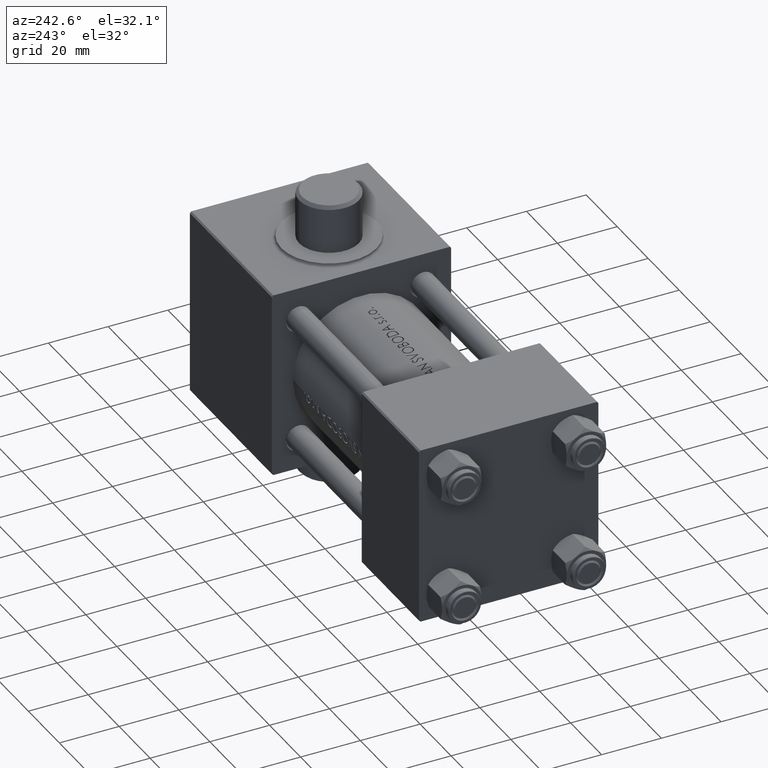
[diagram: clean part render]
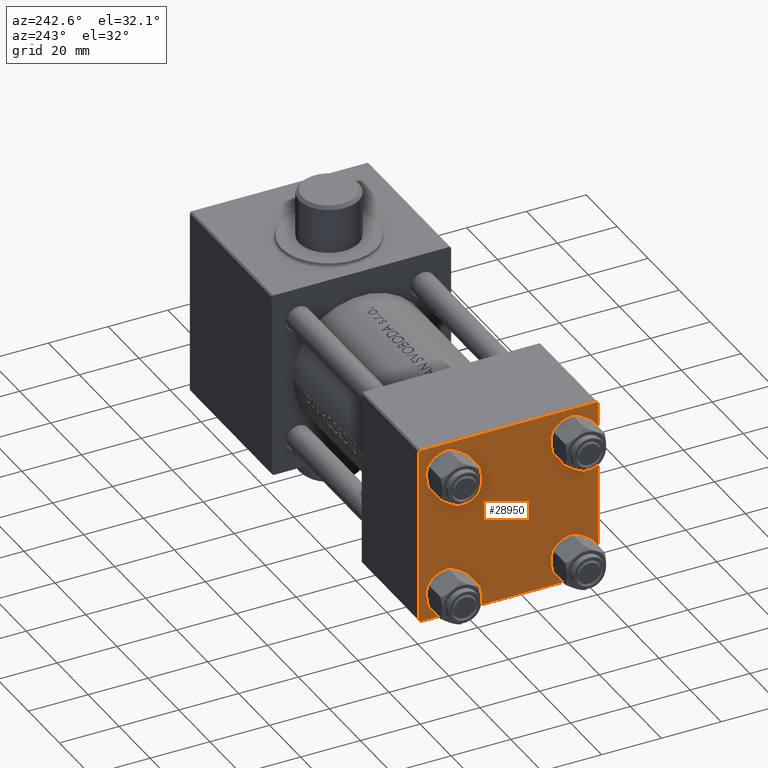
[diagram: same view with one face highlighted and labeled with its STEP entity id]
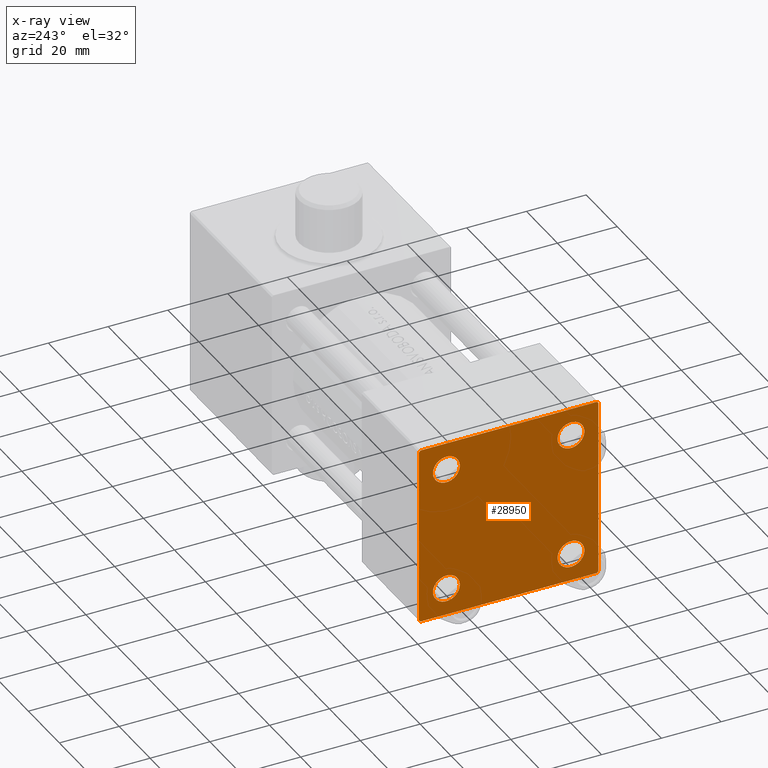
[diagram: x-ray of the same camera — body ghosted, the highlighted face saturated]
A machine part, auxiliary view. The second image highlights one B-rep face of the part: STEP entity #28950.
The next image is the same camera in x-ray: the body ghosted, the highlighted face saturated — about 0% of this face is hidden behind the body in this view.
In plain terms, the highlighted planar face has unit normal (-1, 0, -0).
Its self-contained STEP definition (entity closure, byte-faithful):
#49 = CARTESIAN_POINT ( 'NONE',  ( 0.000000000000000000, -20.84999999999999076, 25.35000000000002274 ) ) ;
#614 = VECTOR ( 'NONE', #5857, 1000.000000000000114 ) ;
#658 = AXIS2_PLACEMENT_3D ( 'NONE', #42486, #21164, #35464 ) ;
#1452 = AXIS2_PLACEMENT_3D ( 'NONE', #36247, #4158, #18412 ) ;
#1912 = ORIENTED_EDGE ( 'NONE', *, *, #8675, .T. ) ;
#2855 = FACE_BOUND ( 'NONE', #15316, .T. ) ;
#3111 = LINE ( 'NONE', #31678, #11084 ) ;
#3223 = ORIENTED_EDGE ( 'NONE', *, *, #12886, .T. ) ;
#3316 = CARTESIAN_POINT ( 'NONE',  ( 0.000000000000000000, 20.84999999999999787, 20.85000000000000142 ) ) ;
#3679 = EDGE_CURVE ( 'NONE', #38715, #6248, #3111, .T. ) ;
#3891 = ORIENTED_EDGE ( 'NONE', *, *, #34771, .T. ) ;
#4158 = DIRECTION ( 'NONE',  ( 1.000000000000000000, -0.000000000000000000, 0.000000000000000000 ) ) ;
#4214 = DIRECTION ( 'NONE',  ( 0.000000000000000000, 0.7071067811865474617, -0.7071067811865474617 ) ) ;
#4453 = CARTESIAN_POINT ( 'NONE',  ( 0.000000000000000000, 29.74999999999999645, 29.74999999999999645 ) ) ;
#5857 = DIRECTION ( 'NONE',  ( -0.000000000000000000, 0.7071067811865474617, 0.7071067811865474617 ) ) ;
#6248 = VERTEX_POINT ( 'NONE', #27057 ) ;
#6367 = EDGE_CURVE ( 'NONE', #21637, #6500, #23864, .T. ) ;
#6369 = CARTESIAN_POINT ( 'NONE',  ( 0.000000000000000000, 0.000000000000000000, 0.000000000000000000 ) ) ;
#6392 = CARTESIAN_POINT ( 'NONE',  ( 0.000000000000000000, 20.84999999999999787, 20.85000000000000142 ) ) ;
#6500 = VERTEX_POINT ( 'NONE', #43577 ) ;
#6538 = DIRECTION ( 'NONE',  ( 0.000000000000000000, 0.000000000000000000, 1.000000000000000000 ) ) ;
#6595 = DIRECTION ( 'NONE',  ( 0.000000000000000000, 0.000000000000000000, 1.000000000000000000 ) ) ;
#7428 = ORIENTED_EDGE ( 'NONE', *, *, #10097, .T. ) ;
#7865 = VERTEX_POINT ( 'NONE', #27795 ) ;
#7946 = VERTEX_POINT ( 'NONE', #41624 ) ;
#8059 = LINE ( 'NONE', #22327, #13582 ) ;
#8248 = AXIS2_PLACEMENT_3D ( 'NONE', #27628, #20815, #6538 ) ;
#8675 = EDGE_CURVE ( 'NONE', #35123, #7946, #45204, .T. ) ;
#8715 = DIRECTION ( 'NONE',  ( 1.000000000000000000, -0.000000000000000000, 0.000000000000000000 ) ) ;
#8821 = EDGE_CURVE ( 'NONE', #7865, #27428, #28311, .T. ) ;
#10097 = EDGE_CURVE ( 'NONE', #34760, #18824, #23109, .T. ) ;
#10805 = EDGE_CURVE ( 'NONE', #18824, #34760, #24619, .T. ) ;
#11084 = VECTOR ( 'NONE', #17594, 999.9999999999998863 ) ;
#11605 = EDGE_CURVE ( 'NONE', #35123, #27428, #35333, .T. ) ;
#11612 = CARTESIAN_POINT ( 'NONE',  ( 0.000000000000000000, -20.84999999999999076, -20.85000000000000497 ) ) ;
#12078 = ORIENTED_EDGE ( 'NONE', *, *, #3679, .T. ) ;
#12502 = EDGE_CURVE ( 'NONE', #36641, #12770, #39669, .T. ) ;
#12596 = ORIENTED_EDGE ( 'NONE', *, *, #12769, .T. ) ;
#12769 = EDGE_CURVE ( 'NONE', #17833, #39642, #21700, .T. ) ;
#12770 = VERTEX_POINT ( 'NONE', #35114 ) ;
#12886 = EDGE_CURVE ( 'NONE', #6500, #21637, #23955, .T. ) ;
#12922 = DIRECTION ( 'NONE',  ( 0.000000000000000000, 0.000000000000000000, -1.000000000000000000 ) ) ;
#13530 = CARTESIAN_POINT ( 'NONE',  ( 0.000000000000000000, 29.49999999999999289, 30.00000000000000000 ) ) ;
#13582 = VECTOR ( 'NONE', #36174, 1000.000000000000000 ) ;
#13801 = CARTESIAN_POINT ( 'NONE',  ( 0.000000000000000000, 20.84999999999999787, -25.35000000000001918 ) ) ;
#15316 = EDGE_LOOP ( 'NONE', ( #30109, #32436 ) ) ;
#15751 = VECTOR ( 'NONE', #4214, 1000.000000000000114 ) ;
#16254 = FACE_BOUND ( 'NONE', #17021, .T. ) ;
#16425 = DIRECTION ( 'NONE',  ( 0.000000000000000000, 0.000000000000000000, 1.000000000000000000 ) ) ;
#16588 = CARTESIAN_POINT ( 'NONE',  ( 0.000000000000000000, 29.99999999999999289, 29.50000000000000000 ) ) ;
#17021 = EDGE_LOOP ( 'NONE', ( #3223, #27089 ) ) ;
#17116 = DIRECTION ( 'NONE',  ( -1.000000000000000000, 0.000000000000000000, -0.000000000000000000 ) ) ;
#17231 = AXIS2_PLACEMENT_3D ( 'NONE', #6369, #17116, #40634 ) ;
#17594 = DIRECTION ( 'NONE',  ( -0.000000000000000000, -0.7071067811865574537, -0.7071067811865376918 ) ) ;
#17710 = ORIENTED_EDGE ( 'NONE', *, *, #40501, .T. ) ;
#17833 = VERTEX_POINT ( 'NONE', #45554 ) ;
#17884 = AXIS2_PLACEMENT_3D ( 'NONE', #37748, #8715, #16425 ) ;
#18142 = EDGE_CURVE ( 'NONE', #12770, #36641, #41659, .T. ) ;
#18247 = LINE ( 'NONE', #4453, #15751 ) ;
#18412 = DIRECTION ( 'NONE',  ( 0.000000000000000000, 0.000000000000000000, 1.000000000000000000 ) ) ;
#18824 = VERTEX_POINT ( 'NONE', #49 ) ;
#19402 = VECTOR ( 'NONE', #39304, 1000.000000000000000 ) ;
#19465 = AXIS2_PLACEMENT_3D ( 'NONE', #3316, #24387, #6595 ) ;
#19467 = VERTEX_POINT ( 'NONE', #13530 ) ;
#19712 = LINE ( 'NONE', #26740, #41863 ) ;
#19990 = CARTESIAN_POINT ( 'NONE',  ( 0.000000000000000000, -30.00000000000000000, -29.50000000000001776 ) ) ;
#20290 = VECTOR ( 'NONE', #46352, 1000.000000000000000 ) ;
#20369 = DIRECTION ( 'NONE',  ( 0.000000000000000000, -0.7071067811865474617, 0.7071067811865474617 ) ) ;
#20601 = CARTESIAN_POINT ( 'NONE',  ( 0.000000000000000000, -20.84999999999999076, 16.34999999999998721 ) ) ;
#20815 = DIRECTION ( 'NONE',  ( 1.000000000000000000, -0.000000000000000000, 0.000000000000000000 ) ) ;
#21164 = DIRECTION ( 'NONE',  ( 1.000000000000000000, -0.000000000000000000, 0.000000000000000000 ) ) ;
#21341 = DIRECTION ( 'NONE',  ( 1.000000000000000000, -0.000000000000000000, 0.000000000000000000 ) ) ;
#21637 = VERTEX_POINT ( 'NONE', #13801 ) ;
#21700 = CIRCLE ( 'NONE', #8248, 4.500000000000017764 ) ;
#22327 = CARTESIAN_POINT ( 'NONE',  ( 0.000000000000000000, 29.99999999999999289, 30.00000000000000000 ) ) ;
#22839 = DIRECTION ( 'NONE',  ( 0.000000000000000000, 0.000000000000000000, 1.000000000000000000 ) ) ;
#23036 = ORIENTED_EDGE ( 'NONE', *, *, #26068, .T. ) ;
#23044 = PLANE ( 'NONE',  #17231 ) ;
#23109 = CIRCLE ( 'NONE', #17884, 4.500000000000017764 ) ;
#23462 = AXIS2_PLACEMENT_3D ( 'NONE', #11612, #29877, #22839 ) ;
#23774 = CARTESIAN_POINT ( 'NONE',  ( 0.000000000000000000, -20.84999999999999076, -25.35000000000002274 ) ) ;
#23864 = CIRCLE ( 'NONE', #658, 4.500000000000017764 ) ;
#23955 = CIRCLE ( 'NONE', #30685, 4.500000000000017764 ) ;
#24339 = LINE ( 'NONE', #32068, #20290 ) ;
#24387 = DIRECTION ( 'NONE',  ( 1.000000000000000000, -0.000000000000000000, 0.000000000000000000 ) ) ;
#24619 = CIRCLE ( 'NONE', #1452, 4.500000000000017764 ) ;
#24785 = ORIENTED_EDGE ( 'NONE', *, *, #10805, .T. ) ;
#26068 = EDGE_CURVE ( 'NONE', #35603, #38715, #19712, .T. ) ;
#26340 = FACE_OUTER_BOUND ( 'NONE', #42589, .T. ) ;
#26740 = CARTESIAN_POINT ( 'NONE',  ( 0.000000000000000000, 29.99999999999999289, 30.00000000000000000 ) ) ;
#27057 = CARTESIAN_POINT ( 'NONE',  ( 0.000000000000000000, 29.49999999999997868, -30.00000000000000000 ) ) ;
#27089 = ORIENTED_EDGE ( 'NONE', *, *, #6367, .T. ) ;
#27178 = CARTESIAN_POINT ( 'NONE',  ( -0.000000000000000000, -29.74999999999999645, 29.74999999999999645 ) ) ;
#27428 = VERTEX_POINT ( 'NONE', #19990 ) ;
#27628 = CARTESIAN_POINT ( 'NONE',  ( 0.000000000000000000, -20.84999999999999076, -20.85000000000000497 ) ) ;
#27795 = CARTESIAN_POINT ( 'NONE',  ( 0.000000000000000000, -29.50000000000000000, -30.00000000000000711 ) ) ;
#28311 = LINE ( 'NONE', #42599, #44757 ) ;
#28938 = AXIS2_PLACEMENT_3D ( 'NONE', #6392, #21341, #41757 ) ;
#28950 = ADVANCED_FACE ( 'NONE', ( #37580, #41095, #16254, #2855, #26340 ), #23044, .T. ) ;
#29877 = DIRECTION ( 'NONE',  ( 1.000000000000000000, -0.000000000000000000, 0.000000000000000000 ) ) ;
#30109 = ORIENTED_EDGE ( 'NONE', *, *, #18142, .T. ) ;
#30345 = ORIENTED_EDGE ( 'NONE', *, *, #11605, .F. ) ;
#30685 = AXIS2_PLACEMENT_3D ( 'NONE', #31523, #45809, #45579 ) ;
#31523 = CARTESIAN_POINT ( 'NONE',  ( 0.000000000000000000, 20.84999999999999787, -20.85000000000000142 ) ) ;
#31678 = CARTESIAN_POINT ( 'NONE',  ( 0.000000000000000000, 29.74999999999957723, -29.75000000000040501 ) ) ;
#31826 = CARTESIAN_POINT ( 'NONE',  ( 0.000000000000000000, 29.99999999999999289, -29.50000000000000000 ) ) ;
#32068 = CARTESIAN_POINT ( 'NONE',  ( 0.000000000000000000, 29.99999999999999289, -30.00000000000000000 ) ) ;
#32436 = ORIENTED_EDGE ( 'NONE', *, *, #12502, .T. ) ;
#32755 = EDGE_CURVE ( 'NONE', #19467, #35603, #18247, .T. ) ;
#34760 = VERTEX_POINT ( 'NONE', #20601 ) ;
#34771 = EDGE_CURVE ( 'NONE', #6248, #7865, #24339, .T. ) ;
#35114 = CARTESIAN_POINT ( 'NONE',  ( 0.000000000000000000, 20.84999999999999787, 25.35000000000001918 ) ) ;
#35123 = VERTEX_POINT ( 'NONE', #41062 ) ;
#35333 = LINE ( 'NONE', #35558, #19402 ) ;
#35464 = DIRECTION ( 'NONE',  ( 0.000000000000000000, 0.000000000000000000, 1.000000000000000000 ) ) ;
#35558 = CARTESIAN_POINT ( 'NONE',  ( 0.000000000000000000, -30.00000000000000000, 29.99999999999999289 ) ) ;
#35603 = VERTEX_POINT ( 'NONE', #16588 ) ;
#36033 = EDGE_CURVE ( 'NONE', #19467, #7946, #8059, .T. ) ;
#36174 = DIRECTION ( 'NONE',  ( 0.000000000000000000, -1.000000000000000000, -1.156482317317871725E-16 ) ) ;
#36247 = CARTESIAN_POINT ( 'NONE',  ( 0.000000000000000000, -20.84999999999999076, 20.85000000000000497 ) ) ;
#36641 = VERTEX_POINT ( 'NONE', #45574 ) ;
#36910 = EDGE_LOOP ( 'NONE', ( #24785, #7428 ) ) ;
#37149 = EDGE_LOOP ( 'NONE', ( #12596, #17710 ) ) ;
#37580 = FACE_BOUND ( 'NONE', #36910, .T. ) ;
#37748 = CARTESIAN_POINT ( 'NONE',  ( 0.000000000000000000, -20.84999999999999076, 20.85000000000000497 ) ) ;
#38715 = VERTEX_POINT ( 'NONE', #31826 ) ;
#39304 = DIRECTION ( 'NONE',  ( 0.000000000000000000, 0.000000000000000000, -1.000000000000000000 ) ) ;
#39642 = VERTEX_POINT ( 'NONE', #23774 ) ;
#39669 = CIRCLE ( 'NONE', #19465, 4.500000000000017764 ) ;
#40501 = EDGE_CURVE ( 'NONE', #39642, #17833, #45888, .T. ) ;
#40634 = DIRECTION ( 'NONE',  ( -0.000000000000000000, 0.000000000000000000, 1.000000000000000000 ) ) ;
#41062 = CARTESIAN_POINT ( 'NONE',  ( 0.000000000000000000, -30.00000000000000000, 29.49999999999999289 ) ) ;
#41095 = FACE_BOUND ( 'NONE', #37149, .T. ) ;
#41624 = CARTESIAN_POINT ( 'NONE',  ( 0.000000000000000000, -29.49999999999998579, 29.99999999999999289 ) ) ;
#41659 = CIRCLE ( 'NONE', #28938, 4.500000000000017764 ) ;
#41757 = DIRECTION ( 'NONE',  ( 0.000000000000000000, 0.000000000000000000, 1.000000000000000000 ) ) ;
#41818 = ORIENTED_EDGE ( 'NONE', *, *, #36033, .F. ) ;
#41863 = VECTOR ( 'NONE', #12922, 1000.000000000000000 ) ;
#42486 = CARTESIAN_POINT ( 'NONE',  ( 0.000000000000000000, 20.84999999999999787, -20.85000000000000142 ) ) ;
#42589 = EDGE_LOOP ( 'NONE', ( #23036, #12078, #3891, #45555, #30345, #1912, #41818, #42958 ) ) ;
#42599 = CARTESIAN_POINT ( 'NONE',  ( 0.000000000000000000, -29.75000000000001066, -29.75000000000001066 ) ) ;
#42958 = ORIENTED_EDGE ( 'NONE', *, *, #32755, .T. ) ;
#43577 = CARTESIAN_POINT ( 'NONE',  ( 0.000000000000000000, 20.84999999999999787, -16.34999999999998366 ) ) ;
#44757 = VECTOR ( 'NONE', #20369, 1000.000000000000114 ) ;
#45204 = LINE ( 'NONE', #27178, #614 ) ;
#45554 = CARTESIAN_POINT ( 'NONE',  ( 0.000000000000000000, -20.84999999999999076, -16.34999999999998721 ) ) ;
#45555 = ORIENTED_EDGE ( 'NONE', *, *, #8821, .T. ) ;
#45574 = CARTESIAN_POINT ( 'NONE',  ( 0.000000000000000000, 20.84999999999999787, 16.34999999999998366 ) ) ;
#45579 = DIRECTION ( 'NONE',  ( 0.000000000000000000, 0.000000000000000000, 1.000000000000000000 ) ) ;
#45809 = DIRECTION ( 'NONE',  ( 1.000000000000000000, -0.000000000000000000, 0.000000000000000000 ) ) ;
#45888 = CIRCLE ( 'NONE', #23462, 4.500000000000017764 ) ;
#46352 = DIRECTION ( 'NONE',  ( 0.000000000000000000, -1.000000000000000000, -1.156482317317871725E-16 ) ) ;